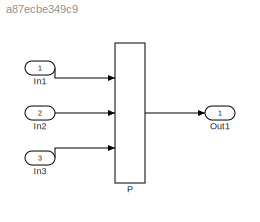
MODEL slx_a87ecbe349c9
KIND model
CONFIG AbsTol = auto
CONFIG EnableMultiTasking = off
CONFIG FixedStep = auto
CONFIG MaxStep = auto
CONFIG MinStep = auto
CONFIG RelTol = 1e-3
CONFIG SampleTimeConstraint = Unconstrained
CONFIG Solver = FixedStepDiscrete
CONFIG SolverName = FixedStepDiscrete
CONFIG StartTime = 0.0
CONFIG StopTime = 10.0
BLOCK [Inport] In1
  IconDisplay = Port number
  OutMax = 2
  OutMin = 0
  PortDimensions = 1
BLOCK [Inport] In2
  IconDisplay = Port number
  OutMax = 1.5
  OutMin = -0.5
  Port = 2
BLOCK [Inport] In3
  IconDisplay = Port number
  OutMax = 5
  OutMin = 0
  Port = 3
BLOCK [Outport] Out1
  IconDisplay = Port number
BLOCK [Interpolation_n-D] P
  InputPortMap = u0,u1,u2
  IntermediateResultsDataTypeStr = single
  InternalRulePriority = Speed
  InterpMethod = Nearest
  NumSelectionDims = 1
  OutDataTypeStr = uint8
  Ports = [3, 1]
  RndMeth = Round
  SaturateOnIntegerOverflow = on
  Table = [26.287840591128 90.0127281190883 35.9555758743238 13.1167845673092 63.6452385982816;47.8051489656873 3.65209581369568 79.0361866798971 46.9731658019794 41.1033163980161]
  ValidIndexMayReachLast = on
LINE In1:1 -> P:1
LINE In2:1 -> P:2
LINE In3:1 -> P:3
LINE P:1 -> Out1:1
